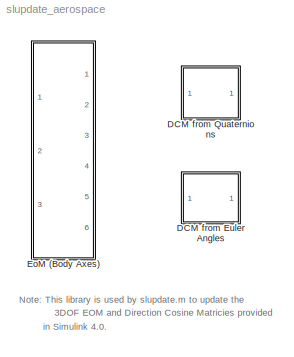
MODEL slupdate_aerospace
KIND library
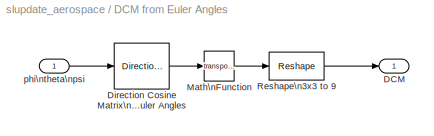
BLOCK [SubSystem] DCM from Euler Angles
  MaskDisplay = disp('axis')
  MaskIconFrame = on
  MaskIconOpaque = on
  MaskIconRotate = none
  MaskIconUnits = autoscale
  MaskType = Direction Cosine Matrix (R12)
  Ports = [1, 1]
  RTWFcnNameOpts = Auto
  RTWFileNameOpts = Auto
  RTWSystemCode = Auto
  ShowPortLabels = on
  TreatAsAtomicUnit = off
BLOCK [Outport] DCM from Euler Angles/DCM
  InitialOutput = []
  OutputWhenDisabled = held
  Port = 1
BLOCK [Reference] DCM from Euler Angles/Direction Cosine Matrix\nfrom Euler Angles  REF=aerospace/Axes\nTransformations/Direction Cosine Matrix\nfrom Euler Angles  (lib defined in mdl_cf564d925549, slx_1354fe9238a2, +3 more)
  Ports = [1, 1]
  SourceBlock = aerospace/Axes\nTransformations/Direction Cosine Matrix\nfrom Euler Angles
  SourceType = Direction Cosine Matrix
BLOCK [Math] DCM from Euler Angles/Math\nFunction
  Operator = transpose
  OutputSignalType = auto
  Ports = [1, 1]
BLOCK [Reference] DCM from Euler Angles/Reshape\n3x3 to 9  REF=simulink3/Signals\n& Systems/Reshape
  OutputDimensionality = Customize
  OutputDimensions = 9
  Ports = [1, 1]
  SourceBlock = simulink3/Signals\n& Systems/Reshape
  SourceType = Reshape
BLOCK [Inport] DCM from Euler Angles/phi\ntheta\npsi
  Interpolate = on
  LatchInput = off
  Port = 1
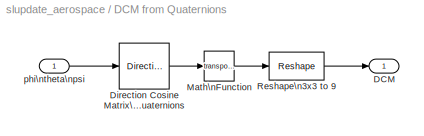
BLOCK [SubSystem] DCM from Quaternions
  MaskDisplay = disp('axis')
  MaskIconFrame = on
  MaskIconOpaque = on
  MaskIconRotate = none
  MaskIconUnits = autoscale
  MaskType = Direction Cosine Matrix (R12)
  Ports = [1, 1]
  RTWFcnNameOpts = Auto
  RTWFileNameOpts = Auto
  RTWSystemCode = Auto
  ShowPortLabels = on
  TreatAsAtomicUnit = off
BLOCK [Outport] DCM from Quaternions/DCM
  InitialOutput = []
  OutputWhenDisabled = held
  Port = 1
BLOCK [Reference] DCM from Quaternions/Direction Cosine Matrix\nfrom quaternions  REF=aerospace/Axes\nTransformations/Direction Cosine Matrix\nfrom quaternions  (lib defined in mdl_cf564d925549, slx_1354fe9238a2, +3 more)
  Ports = [1, 1]
  SourceBlock = aerospace/Axes\nTransformations/Direction Cosine Matrix\nfrom quaternions
  SourceType = Direction Cosine Matrix
BLOCK [Math] DCM from Quaternions/Math\nFunction
  Operator = transpose
  OutputSignalType = auto
  Ports = [1, 1]
BLOCK [Reference] DCM from Quaternions/Reshape\n3x3 to 9  REF=simulink3/Signals\n& Systems/Reshape
  OutputDimensionality = Customize
  OutputDimensions = 9
  Ports = [1, 1]
  SourceBlock = simulink3/Signals\n& Systems/Reshape
  SourceType = Reshape
BLOCK [Inport] DCM from Quaternions/phi\ntheta\npsi
  Interpolate = on
  LatchInput = off
  Port = 1
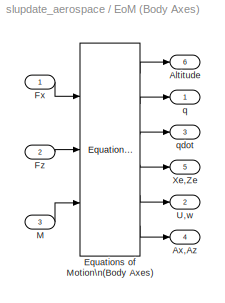
BLOCK [SubSystem] EoM (Body Axes)
  MaskIconFrame = on
  MaskIconOpaque = on
  MaskIconRotate = none
  MaskIconUnits = autoscale
  MaskType = 3 DOF equations of motion (R12)
  Ports = [3, 6]
  RTWFcnNameOpts = Auto
  RTWFileNameOpts = Auto
  RTWSystemCode = Auto
  ShowPortLabels = on
  TreatAsAtomicUnit = off
BLOCK [Reference] EoM (Body Axes)/ Equations of Motion\n(Body Axes)  REF=aerospace/3DoF\nEquations\nof\nMotion / Equations of Motion\n(Body Axes)  (lib defined in mdl_cf564d925549, slx_1354fe9238a2, +3 more)
  Iyy = Iyy
  Ports = [3, 6]
  SourceBlock = aerospace/3DoF\nEquations\nof\nMotion / Equations of Motion\n(Body Axes)
  SourceType = 3 DOF equations of motion
  alpha_ini = alpha_ini
  g = g
  mass = mass
  pos_ini = pos_ini
  q_ini = q_ini
  theta_ini = theta_ini
  v_ini = v_ini
BLOCK [Outport] EoM (Body Axes)/Altitude
  InitialOutput = []
  OutputWhenDisabled = held
  Port = 6
BLOCK [Outport] EoM (Body Axes)/Ax,Az
  InitialOutput = []
  OutputWhenDisabled = held
  Port = 4
BLOCK [Inport] EoM (Body Axes)/Fx
  Interpolate = on
  LatchInput = off
  Port = 1
BLOCK [Inport] EoM (Body Axes)/Fz
  Interpolate = on
  LatchInput = off
  Port = 2
BLOCK [Inport] EoM (Body Axes)/M
  Interpolate = on
  LatchInput = off
  Port = 3
BLOCK [Outport] EoM (Body Axes)/U,w
  InitialOutput = []
  OutputWhenDisabled = held
  Port = 2
BLOCK [Outport] EoM (Body Axes)/Xe,Ze
  InitialOutput = []
  OutputWhenDisabled = held
  Port = 5
BLOCK [Outport] EoM (Body Axes)/q
  InitialOutput = []
  OutputWhenDisabled = held
  Port = 1
BLOCK [Outport] EoM (Body Axes)/qdot
  InitialOutput = []
  OutputWhenDisabled = held
  Port = 3
ANNOTATION (root): 3DOF EOM and Direction Cosine Matricies provided
ANNOTATION (root): Note: This library is used by slupdate.m to update the
ANNOTATION (root): in Simulink 4.0.
LINE DCM from Euler Angles/Direction Cosine Matrix\nfrom Euler Angles:1 -> DCM from Euler Angles/Math\nFunction:1
LINE DCM from Euler Angles/Math\nFunction:1 -> DCM from Euler Angles/Reshape\n3x3 to 9:1
LINE DCM from Euler Angles/Reshape\n3x3 to 9:1 -> DCM from Euler Angles/DCM:1
LINE DCM from Euler Angles/phi\ntheta\npsi:1 -> DCM from Euler Angles/Direction Cosine Matrix\nfrom Euler Angles:1
LINE DCM from Quaternions/Direction Cosine Matrix\nfrom quaternions:1 -> DCM from Quaternions/Math\nFunction:1
LINE DCM from Quaternions/Math\nFunction:1 -> DCM from Quaternions/Reshape\n3x3 to 9:1
LINE DCM from Quaternions/Reshape\n3x3 to 9:1 -> DCM from Quaternions/DCM:1
LINE DCM from Quaternions/phi\ntheta\npsi:1 -> DCM from Quaternions/Direction Cosine Matrix\nfrom quaternions:1
LINE EoM (Body Axes)/ Equations of Motion\n(Body Axes):1 -> EoM (Body Axes)/Altitude:1
LINE EoM (Body Axes)/ Equations of Motion\n(Body Axes):2 -> EoM (Body Axes)/q:1
LINE EoM (Body Axes)/ Equations of Motion\n(Body Axes):3 -> EoM (Body Axes)/qdot:1
LINE EoM (Body Axes)/ Equations of Motion\n(Body Axes):4 -> EoM (Body Axes)/Xe,Ze:1
LINE EoM (Body Axes)/ Equations of Motion\n(Body Axes):5 -> EoM (Body Axes)/U,w:1
LINE EoM (Body Axes)/ Equations of Motion\n(Body Axes):6 -> EoM (Body Axes)/Ax,Az:1
LINE EoM (Body Axes)/Fx:1 -> EoM (Body Axes)/ Equations of Motion\n(Body Axes):1
LINE EoM (Body Axes)/Fz:1 -> EoM (Body Axes)/ Equations of Motion\n(Body Axes):2
LINE EoM (Body Axes)/M:1 -> EoM (Body Axes)/ Equations of Motion\n(Body Axes):3
